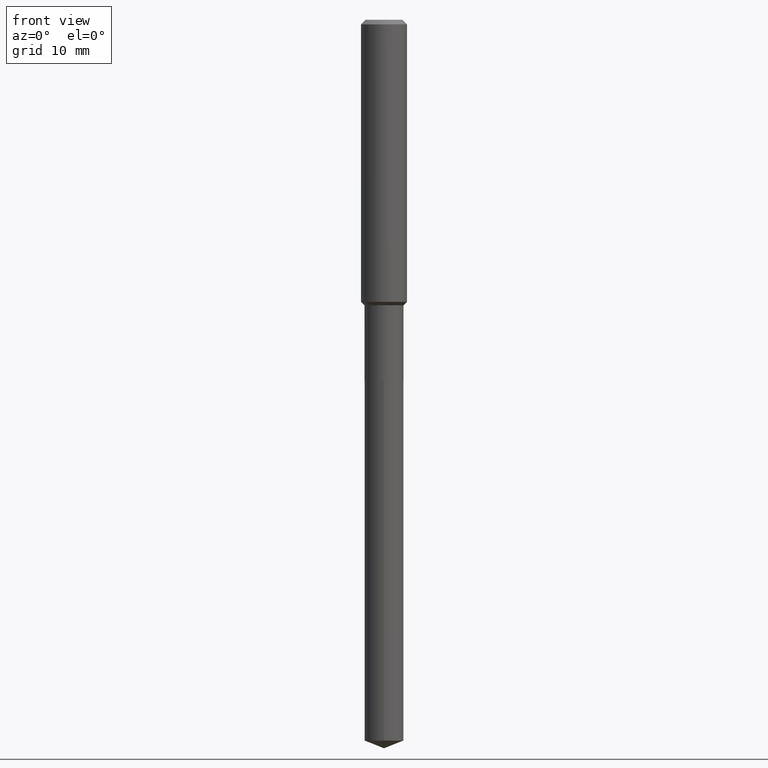
[diagram: clean part render]
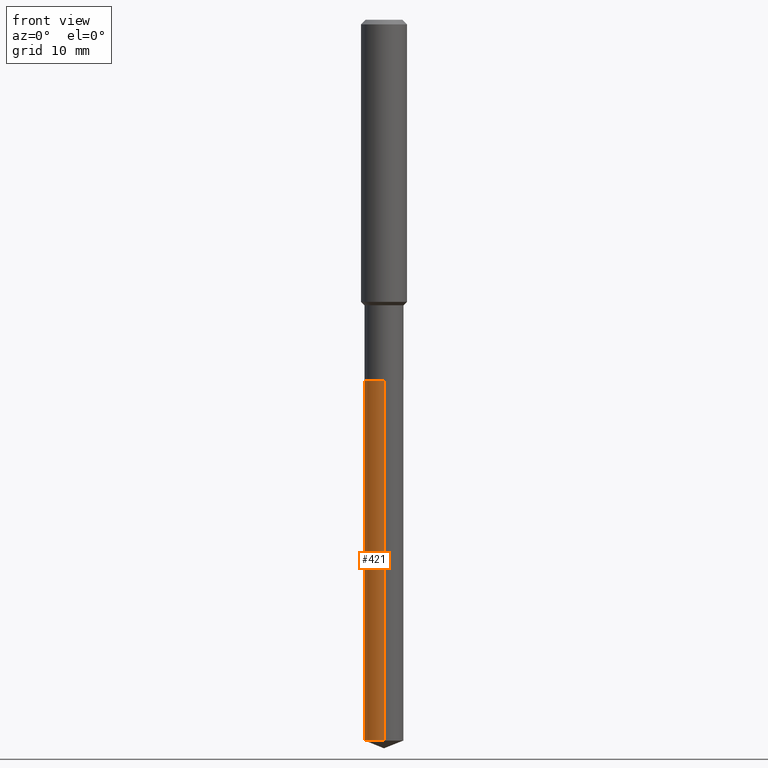
[diagram: same view with one face highlighted and labeled with its STEP entity id]
A machine part, front view. The second image highlights one B-rep face of the part: STEP entity #421.
In plain terms, the highlighted cylindrical surface (edge-blend (fillet) strip) has radius 2.5502 mm, axis along (-0, 0, 1).
Its self-contained STEP definition (entity closure, byte-faithful):
#6 = VERTEX_POINT ( 'NONE', #54 ) ;
#15 = DIRECTION ( 'NONE',  ( -2.445480539169629745E-29, 3.491464536541551464E-15, 1.000000000000000000 ) ) ;
#28 = EDGE_CURVE ( 'NONE', #411, #6, #160, .T. ) ;
#54 = CARTESIAN_POINT ( 'NONE',  ( -7.010894528396559145E-16, -0.1004000000000064563, -1.850400000000000045 ) ) ;
#64 = DIRECTION ( 'NONE',  ( -2.445480539169630025E-29, 3.491464536541551464E-15, 1.000000000000000000 ) ) ;
#82 = ORIENTED_EDGE ( 'NONE', *, *, #28, .T. ) ;
#120 = CARTESIAN_POINT ( 'NONE',  ( 4.525095478964977394E-29, -6.460637069395357576E-15, -1.850400000000000267 ) ) ;
#130 = CARTESIAN_POINT ( 'NONE',  ( 7.133849067031857711E-16, 0.1003999999999935500, -1.850400000000000489 ) ) ;
#131 = VECTOR ( 'NONE', #469, 39.37007874015748143 ) ;
#139 = CYLINDRICAL_SURFACE ( 'NONE', #206, 0.1004000000000000031 ) ;
#158 = EDGE_CURVE ( 'NONE', #327, #422, #246, .T. ) ;
#160 = LINE ( 'NONE', #349, #131 ) ;
#168 = CARTESIAN_POINT ( 'NONE',  ( 9.049849241497684976E-29, -1.292072417515092949E-14, -3.700651388248259455 ) ) ;
#203 = CARTESIAN_POINT ( 'NONE',  ( -7.010894528396106536E-16, -0.1004000000000129511, -3.700651388248259011 ) ) ;
#206 = AXIS2_PLACEMENT_3D ( 'NONE', #480, #363, #242 ) ;
#209 = EDGE_CURVE ( 'NONE', #422, #6, #241, .T. ) ;
#226 = ORIENTED_EDGE ( 'NONE', *, *, #209, .F. ) ;
#241 = CIRCLE ( 'NONE', #426, 0.1004000000000000031 ) ;
#242 = DIRECTION ( 'NONE',  ( -6.982962677686266711E-15, -1.000000000000000000, 2.720964137115799877E-15 ) ) ;
#246 = LINE ( 'NONE', #130, #416 ) ;
#292 = AXIS2_PLACEMENT_3D ( 'NONE', #168, #398, #440 ) ;
#306 = EDGE_LOOP ( 'NONE', ( #487, #371, #82, #226 ) ) ;
#327 = VERTEX_POINT ( 'NONE', #368 ) ;
#331 = EDGE_CURVE ( 'NONE', #327, #411, #434, .T. ) ;
#349 = CARTESIAN_POINT ( 'NONE',  ( -7.010894528396559145E-16, -0.1004000000000064563, -1.850400000000000045 ) ) ;
#363 = DIRECTION ( 'NONE',  ( -2.445480539169629745E-29, 3.491464536541551464E-15, 1.000000000000000000 ) ) ;
#368 = CARTESIAN_POINT ( 'NONE',  ( 7.133849067032312293E-16, 0.1003999999999871107, -3.700651388248259899 ) ) ;
#371 = ORIENTED_EDGE ( 'NONE', *, *, #331, .T. ) ;
#382 = DIRECTION ( 'NONE',  ( -6.982962677686266711E-15, -1.000000000000000000, 2.720964137115799877E-15 ) ) ;
#398 = DIRECTION ( 'NONE',  ( -2.445480539169629745E-29, 3.491464536541551464E-15, 1.000000000000000000 ) ) ;
#411 = VERTEX_POINT ( 'NONE', #203 ) ;
#416 = VECTOR ( 'NONE', #64, 39.37007874015748143 ) ;
#421 = ADVANCED_FACE ( 'NONE', ( #481 ), #139, .T. ) ;
#422 = VERTEX_POINT ( 'NONE', #475 ) ;
#426 = AXIS2_PLACEMENT_3D ( 'NONE', #120, #15, #382 ) ;
#434 = CIRCLE ( 'NONE', #292, 0.1004000000000000031 ) ;
#440 = DIRECTION ( 'NONE',  ( -6.982962677686266711E-15, -1.000000000000000000, 5.441928274231599754E-15 ) ) ;
#469 = DIRECTION ( 'NONE',  ( -2.445480539169630025E-29, 3.491464536541551464E-15, 1.000000000000000000 ) ) ;
#475 = CARTESIAN_POINT ( 'NONE',  ( 7.133849067032315251E-16, 0.1003999999999935638, -1.850400000000000489 ) ) ;
#480 = CARTESIAN_POINT ( 'NONE',  ( 4.525095478964977394E-29, -6.460637069395357576E-15, -1.850400000000000267 ) ) ;
#481 = FACE_OUTER_BOUND ( 'NONE', #306, .T. ) ;
#487 = ORIENTED_EDGE ( 'NONE', *, *, #158, .F. ) ;